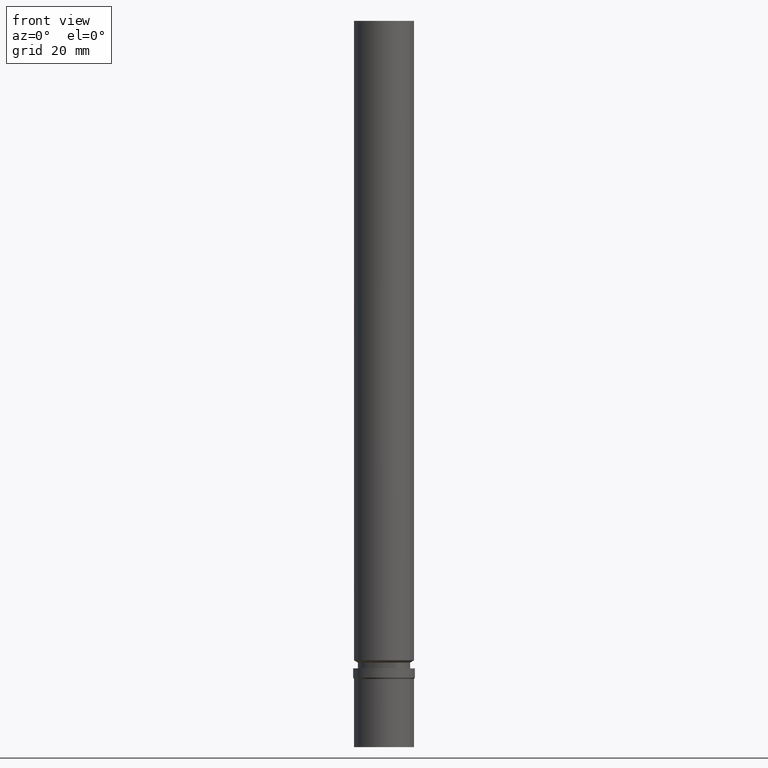
[diagram: clean part render]
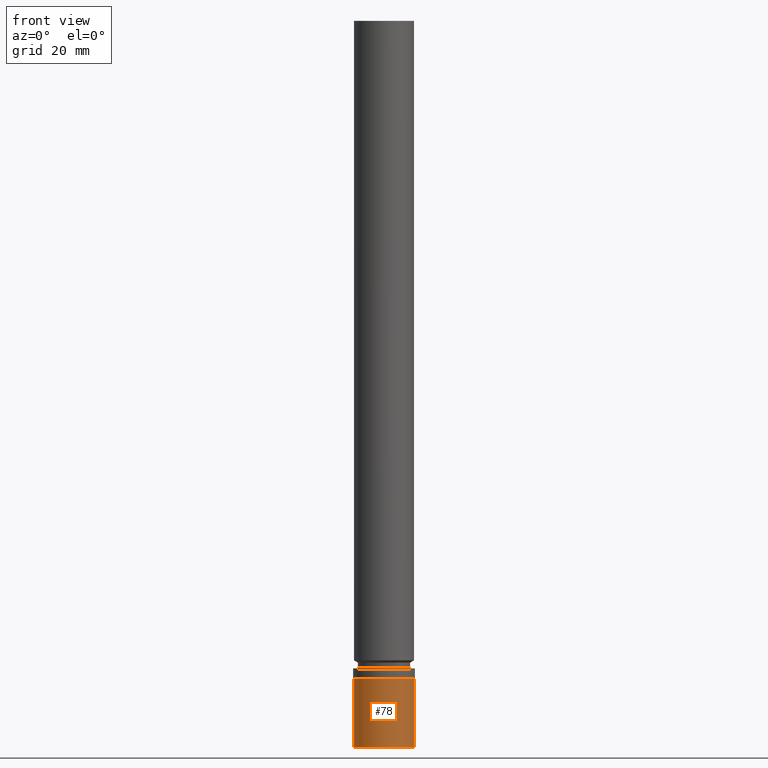
[diagram: same view with one face highlighted and labeled with its STEP entity id]
A machine part, front view. The second image highlights one B-rep face of the part: STEP entity #78.
In plain terms, the highlighted cylindrical surface (bore or boss wall) has radius 5 mm, axis along (-0, -0, 1).
Its self-contained STEP definition (entity closure, byte-faithful):
#78=ADVANCED_FACE('',(#94,#95),#96,.T.);
#94=FACE_BOUND('',#119,.T.);
#95=FACE_BOUND('',#120,.T.);
#96=CYLINDRICAL_SURFACE('',#121,5.0);
#119=EDGE_LOOP('',(#150));
#120=EDGE_LOOP('',(#151));
#121=AXIS2_PLACEMENT_3D('',#152,#153,#154);
#150=ORIENTED_EDGE('',*,*,#182,.F.);
#151=ORIENTED_EDGE('',*,*,#181,.T.);
#152=CARTESIAN_POINT('',(-3.44131640499187E-016,-6.88263280998373E-016,5.62009619));
#153=DIRECTION('',(-6.12323399573677E-017,-1.22464679914735E-016,1.0));
#154=DIRECTION('',(-1.23259516440783E-032,1.0,1.22464679914735E-016));
#181=EDGE_CURVE('',#192,#192,#193,.T.);
#182=EDGE_CURVE('',#194,#194,#195,.T.);
#192=VERTEX_POINT('',#208);
#193=CIRCLE('',#209,5.0);
#194=VERTEX_POINT('',#210);
#195=CIRCLE('',#211,5.0);
#208=CARTESIAN_POINT('',(-6.88263280998374E-016,5.0,11.24019238));
#209=AXIS2_PLACEMENT_3D('',#227,#228,#229);
#210=CARTESIAN_POINT('',(-6.16297582203915E-032,5.0,6.12323399573677E-016));
#211=AXIS2_PLACEMENT_3D('',#230,#231,#232);
#227=CARTESIAN_POINT('',(-6.88263280998373E-016,-1.37652656199675E-015,11.24019238));
#228=DIRECTION('',(6.12323399573677E-017,1.22464679914735E-016,-1.0));
#229=DIRECTION('',(-1.23259516440783E-032,1.0,1.22464679914735E-016));
#230=CARTESIAN_POINT('',(0.0,0.0,0.0));
#231=DIRECTION('',(6.12323399573677E-017,1.22464679914735E-016,-1.0));
#232=DIRECTION('',(-1.23259516440783E-032,1.0,1.22464679914735E-016));